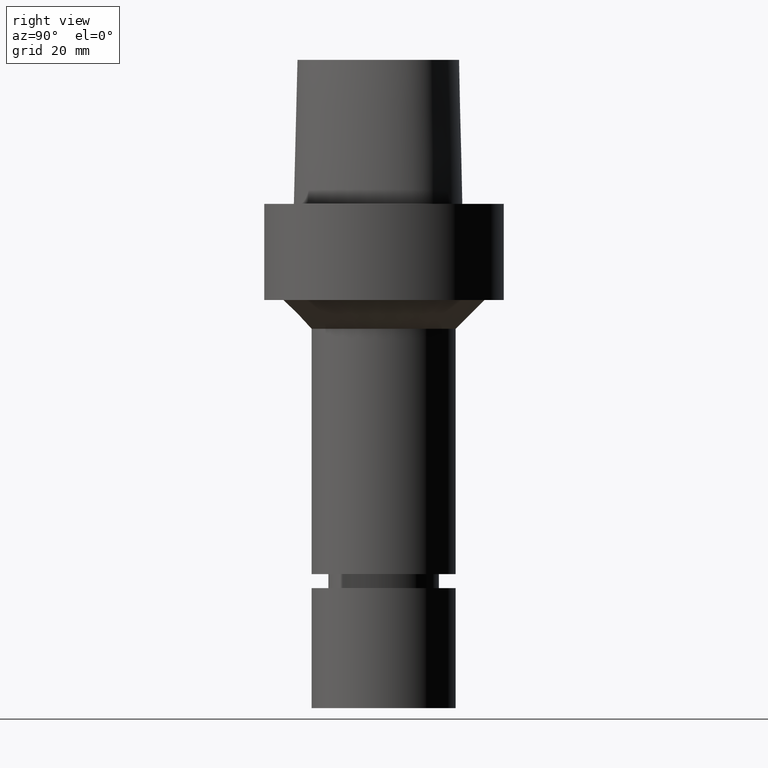
[diagram: clean part render]
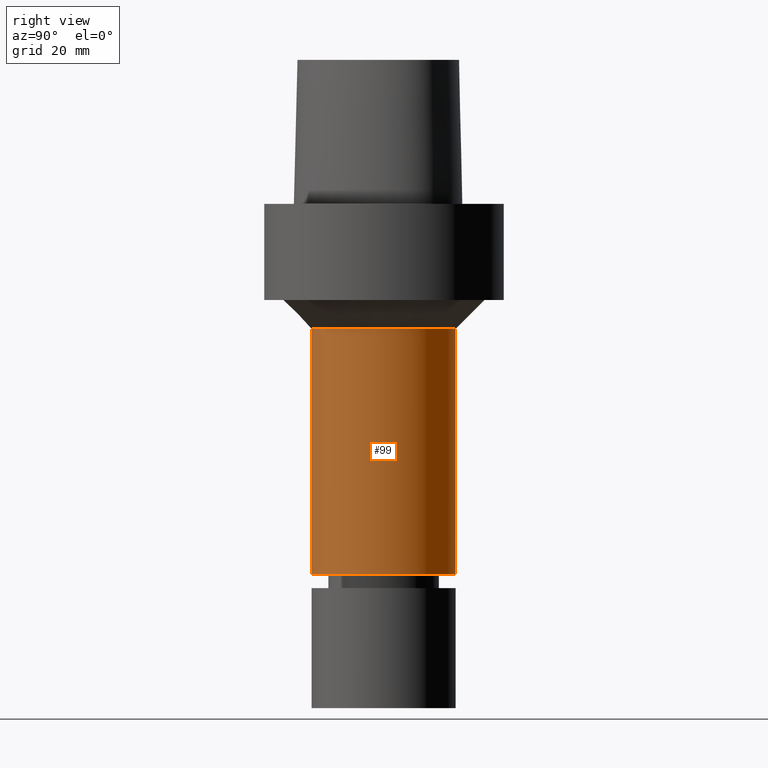
[diagram: same view with one face highlighted and labeled with its STEP entity id]
A machine part, right view. The second image highlights one B-rep face of the part: STEP entity #99.
In plain terms, the highlighted cylindrical surface (bore or boss wall) has radius 15 mm, axis along (0, 0, -1).
Its self-contained STEP definition (entity closure, byte-faithful):
#99=ADVANCED_FACE('Unnamed[1]',(#219,#220),#221,.T.);
#135=EDGE_CURVE('Unnamed[1]',#271,#271,#272,.T.);
#145=EDGE_CURVE('Unnamed[1]',#286,#286,#287,.T.);
#219=FACE_BOUND('',#510,.T.);
#220=FACE_BOUND('',#511,.T.);
#221=CYLINDRICAL_SURFACE('',#512,15.0000000000003);
#271=VERTEX_POINT('',#961);
#272=CIRCLE('',#962,15.0000000000003);
#286=VERTEX_POINT('',#981);
#287=CIRCLE('',#982,15.0000000000003);
#510=EDGE_LOOP('',(#1039));
#511=EDGE_LOOP('',(#1040));
#512=AXIS2_PLACEMENT_3D('',#1041,#1042,#1043);
#961=CARTESIAN_POINT('',(1.59204083889156E-015,15.0000000000003,-26.0));
#962=AXIS2_PLACEMENT_3D('',#1095,#1096,#1097);
#981=CARTESIAN_POINT('',(4.72101341071301E-015,15.0000000000003,-77.0999999999993));
#982=AXIS2_PLACEMENT_3D('',#1110,#1111,#1112);
#1039=ORIENTED_EDGE('',*,*,#145,.F.);
#1040=ORIENTED_EDGE('',*,*,#135,.T.);
#1041=CARTESIAN_POINT('',(3.15652712480228E-015,6.31305424960456E-015,-51.5499999999997));
#1042=DIRECTION('',(6.12323399573676E-017,1.22464679914735E-016,-1.0));
#1043=DIRECTION('',(-1.23259516440783E-032,1.0,1.22464679914735E-016));
#1095=CARTESIAN_POINT('',(1.59204083889156E-015,3.18408167778312E-015,-26.0));
#1096=DIRECTION('',(6.12323399573677E-017,1.22464679914735E-016,-1.0));
#1097=DIRECTION('',(-1.23259516440783E-032,1.0,1.22464679914735E-016));
#1110=CARTESIAN_POINT('',(4.72101341071301E-015,9.44202682142601E-015,-77.0999999999993));
#1111=DIRECTION('',(6.12323399573677E-017,1.22464679914735E-016,-1.0));
#1112=DIRECTION('',(-1.23259516440783E-032,1.0,1.22464679914735E-016));